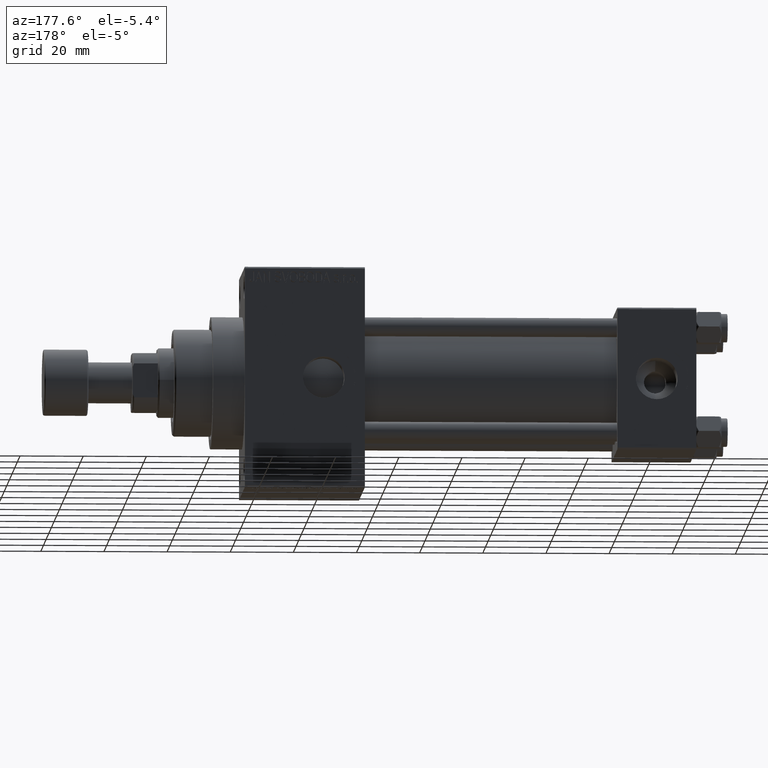
[diagram: clean part render]
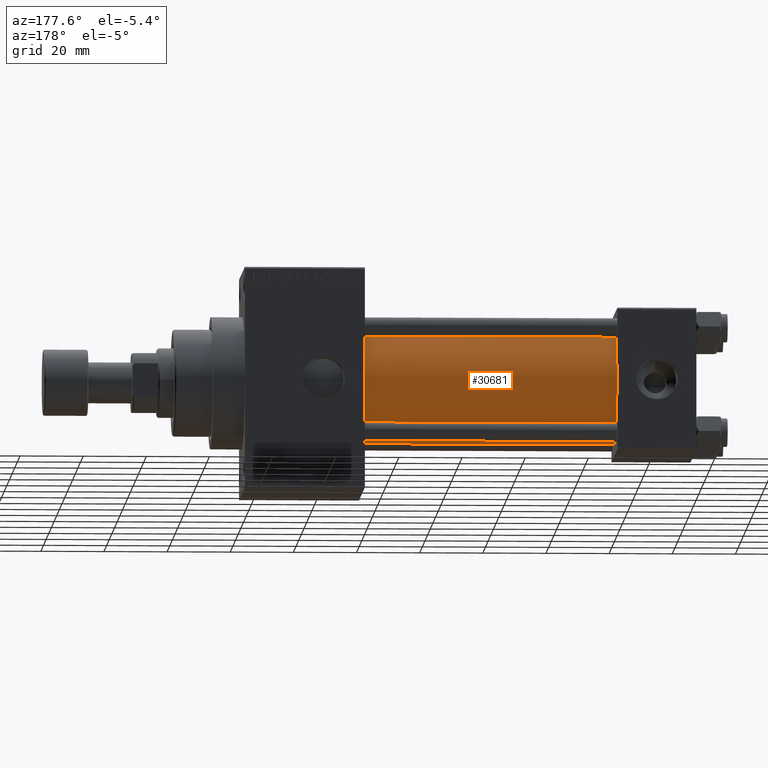
[diagram: same view with one face highlighted and labeled with its STEP entity id]
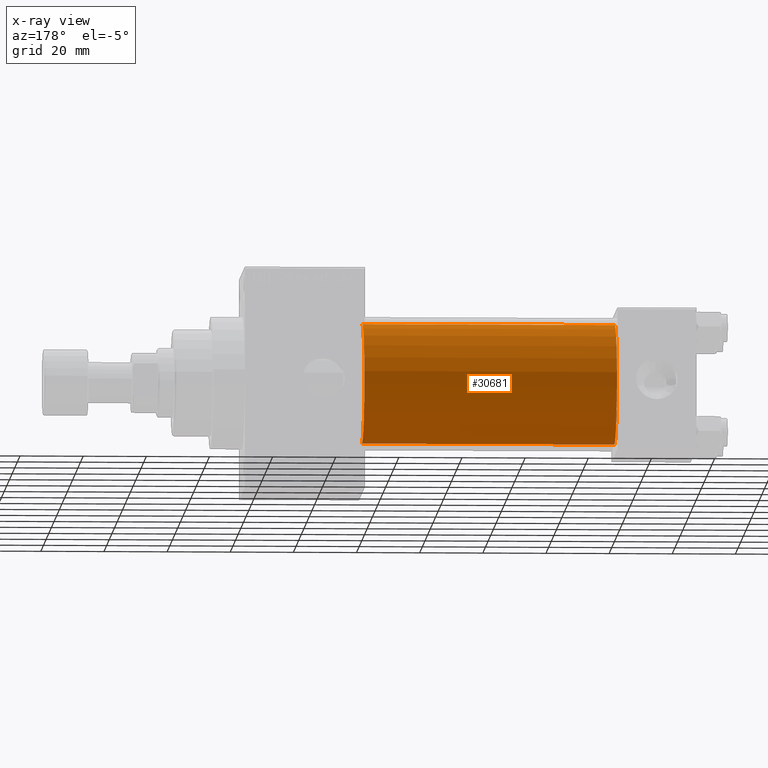
[diagram: x-ray of the same camera — body ghosted, the highlighted face saturated]
A machine part, auxiliary view. The second image highlights one B-rep face of the part: STEP entity #30681.
The next image is the same camera in x-ray: the body ghosted, the highlighted face saturated — about 0% of this face is hidden behind the body in this view.
In plain terms, the highlighted cylindrical surface (partial cylindrical patch) has radius 19 mm, axis along (-1, -0, -0).
Its self-contained STEP definition (entity closure, byte-faithful):
#152 = ORIENTED_EDGE ( 'NONE', *, *, #42460, .F. ) ;
#2642 = EDGE_LOOP ( 'NONE', ( #26268, #34411, #4120, #152 ) ) ;
#3849 = EDGE_CURVE ( 'NONE', #27510, #45464, #17374, .T. ) ;
#4120 = ORIENTED_EDGE ( 'NONE', *, *, #3849, .T. ) ;
#4824 = FACE_OUTER_BOUND ( 'NONE', #2642, .T. ) ;
#6111 = LINE ( 'NONE', #13089, #37480 ) ;
#9620 = CARTESIAN_POINT ( 'NONE',  ( 105.0000000000000142, -2.602085213965210642E-15, 19.00000000000000000 ) ) ;
#13089 = CARTESIAN_POINT ( 'NONE',  ( 105.0000000000000142, -2.752562955852396712E-16, -19.00000000000000000 ) ) ;
#16043 = VERTEX_POINT ( 'NONE', #9620 ) ;
#17202 = DIRECTION ( 'NONE',  ( 1.000000000000000000, 0.000000000000000000, 0.000000000000000000 ) ) ;
#17374 = CIRCLE ( 'NONE', #23516, 19.00000000000000000 ) ;
#19428 = DIRECTION ( 'NONE',  ( -1.000000000000000000, -0.000000000000000000, -0.000000000000000000 ) ) ;
#20173 = CARTESIAN_POINT ( 'NONE',  ( 24.99999999999999289, -2.752562955852396712E-16, -19.00000000000000000 ) ) ;
#20465 = CARTESIAN_POINT ( 'NONE',  ( 24.99999999999999289, -2.602085213965210642E-15, 19.00000000000000000 ) ) ;
#22800 = CARTESIAN_POINT ( 'NONE',  ( 105.0000000000000142, -2.602085213965210642E-15, 19.00000000000000000 ) ) ;
#23516 = AXIS2_PLACEMENT_3D ( 'NONE', #35053, #31685, #27349 ) ;
#23591 = VECTOR ( 'NONE', #19428, 1000.000000000000000 ) ;
#25108 = CARTESIAN_POINT ( 'NONE',  ( 105.0000000000000142, -2.602085213965210642E-15, 0.000000000000000000 ) ) ;
#25273 = VERTEX_POINT ( 'NONE', #37045 ) ;
#26268 = ORIENTED_EDGE ( 'NONE', *, *, #30520, .F. ) ;
#26954 = CYLINDRICAL_SURFACE ( 'NONE', #31919, 19.00000000000000000 ) ;
#27349 = DIRECTION ( 'NONE',  ( 0.000000000000000000, 0.000000000000000000, 1.000000000000000000 ) ) ;
#27375 = LINE ( 'NONE', #22800, #23591 ) ;
#27510 = VERTEX_POINT ( 'NONE', #20173 ) ;
#30520 = EDGE_CURVE ( 'NONE', #25273, #16043, #31131, .T. ) ;
#30681 = ADVANCED_FACE ( 'NONE', ( #4824 ), #26954, .T. ) ;
#31131 = CIRCLE ( 'NONE', #38034, 19.00000000000000000 ) ;
#31376 = DIRECTION ( 'NONE',  ( -1.000000000000000000, -0.000000000000000000, -0.000000000000000000 ) ) ;
#31685 = DIRECTION ( 'NONE',  ( 1.000000000000000000, -0.000000000000000000, 0.000000000000000000 ) ) ;
#31873 = DIRECTION ( 'NONE',  ( 0.000000000000000000, 0.000000000000000000, -1.000000000000000000 ) ) ;
#31919 = AXIS2_PLACEMENT_3D ( 'NONE', #37998, #41848, #34422 ) ;
#34411 = ORIENTED_EDGE ( 'NONE', *, *, #44949, .T. ) ;
#34422 = DIRECTION ( 'NONE',  ( 0.000000000000000000, 0.000000000000000000, 1.000000000000000000 ) ) ;
#35053 = CARTESIAN_POINT ( 'NONE',  ( 24.99999999999999289, -2.602085213965210642E-15, 0.000000000000000000 ) ) ;
#37045 = CARTESIAN_POINT ( 'NONE',  ( 105.0000000000000142, -2.752562955852396712E-16, -19.00000000000000000 ) ) ;
#37480 = VECTOR ( 'NONE', #31376, 1000.000000000000000 ) ;
#37998 = CARTESIAN_POINT ( 'NONE',  ( 105.0000000000000142, -2.602085213965210642E-15, 0.000000000000000000 ) ) ;
#38034 = AXIS2_PLACEMENT_3D ( 'NONE', #25108, #17202, #31873 ) ;
#41848 = DIRECTION ( 'NONE',  ( -1.000000000000000000, -0.000000000000000000, -0.000000000000000000 ) ) ;
#42460 = EDGE_CURVE ( 'NONE', #16043, #45464, #27375, .T. ) ;
#44949 = EDGE_CURVE ( 'NONE', #25273, #27510, #6111, .T. ) ;
#45464 = VERTEX_POINT ( 'NONE', #20465 ) ;